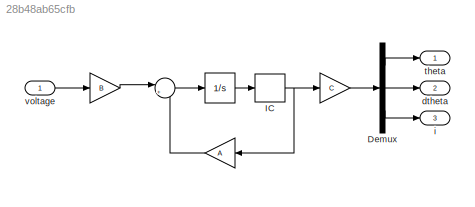
MODEL slx_28b48ab65cfb
KIND model
CONFIG AbsTol = auto
CONFIG FixedStep = auto
CONFIG MaxStep = auto
CONFIG MinStep = auto
CONFIG RelTol = 1e-3
CONFIG SampleTimeConstraint = Unconstrained
CONFIG Solver = VariableStepAuto
CONFIG SolverMode = Auto
CONFIG SolverName = VariableStepAuto
CONFIG StartTime = 0.0
CONFIG StopTime = 10.0
BLOCK [Sum]  
  IconShape = round
  InputSameDT = off
  Inputs = |++
  OutDataTypeStr = Inherit: Inherit via internal rule
  Ports = [2, 1]
  SaturateOnIntegerOverflow = off
BLOCK [Gain]   
  Gain = B
  Multiplication = Matrix(K*u)
  OutDataTypeStr = Inherit: Inherit via internal rule
  ParamDataTypeStr = Inherit: Inherit via internal rule
  SaturateOnIntegerOverflow = off
BLOCK [Integrator]    
  Ports = [1, 1]
BLOCK [Gain]     
  Gain = A
  Multiplication = Matrix(K*u)
  OutDataTypeStr = Inherit: Inherit via internal rule
  ParamDataTypeStr = Inherit: Inherit via internal rule
  SaturateOnIntegerOverflow = off
BLOCK [Gain]        
  Gain = C
  Multiplication = Matrix(K*u)
  OutDataTypeStr = Inherit: Inherit via internal rule
  ParamDataTypeStr = Inherit: Inherit via internal rule
  SaturateOnIntegerOverflow = off
BLOCK [Demux] Demux
  DisplayOption = bar
  Outputs = 3
  Ports = [1, 3]
BLOCK [InitialCondition] IC
  Value = x0
BLOCK [Outport] dtheta
  IconDisplay = Port number
  Port = 2
  PortDimensions = 1
BLOCK [Outport] i
  IconDisplay = Port number
  Port = 3
  PortDimensions = 1
BLOCK [Outport] theta
  IconDisplay = Port number
  PortDimensions = 1
BLOCK [Inport] voltage
  IconDisplay = Port number
  PortDimensions = 1
LINE        :1 -> Demux:1
LINE     :1 ->  :2
LINE    :1 -> IC:1
LINE   :1 ->  :1
LINE  :1 ->    :1
LINE Demux:1 -> theta:1
LINE Demux:2 -> dtheta:1
LINE Demux:3 -> i:1
NET IC:1 ->        :1,     :1
LINE voltage:1 ->   :1
note: NET lines group one-source signal fan-out (src -> all destinations, sorted); 1:1 wires keep LINE
